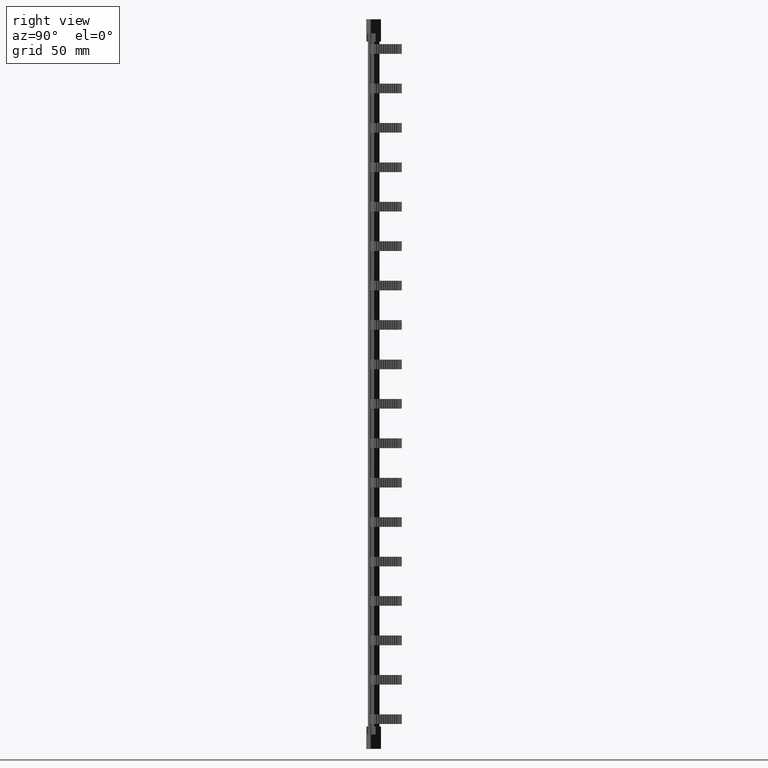
[diagram: clean part render]
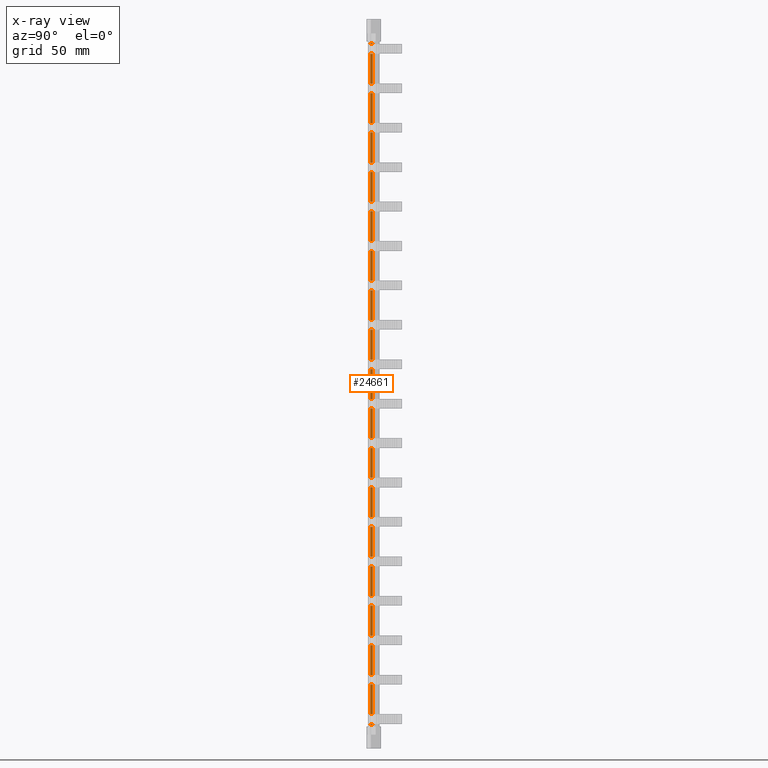
[diagram: x-ray — body ghosted, one internal face saturated and labeled with its STEP entity id]
A machine part, right view, then the same camera in x-ray: the body is ghosted and one INTERNAL B-rep face — a face not visible from any outside direction — is saturated and labeled: STEP entity #24661.
In plain terms, the highlighted planar face has unit normal (1, -0, 0).
Its self-contained STEP definition (entity closure, byte-faithful):
#46 = VECTOR ( 'NONE', #1295, 1000.000000000000000 ) ;
#584 = DIRECTION ( 'NONE',  ( -4.290194349704565900E-047, -1.000000000000000000, 2.593268936129210100E-023 ) ) ;
#590 = LINE ( 'NONE', #591, #5545 ) ;
#591 = CARTESIAN_POINT ( 'NONE',  ( 10.37430495582721900, -198.1399000273587800, 151.6000000000000200 ) ) ;
#599 = LINE ( 'NONE', #602, #5562 ) ;
#602 = CARTESIAN_POINT ( 'NONE',  ( 10.37430495582721900, -198.1399000273587800, 186.8000000000000100 ) ) ;
#608 = DIRECTION ( 'NONE',  ( -4.290194349704565900E-047, -1.000000000000000000, 2.593268936129210100E-023 ) ) ;
#621 = LINE ( 'NONE', #636, #5575 ) ;
#636 = CARTESIAN_POINT ( 'NONE',  ( 10.37430495582721900, -198.1399000273587800, 85.50000000000001400 ) ) ;
#641 = DIRECTION ( 'NONE',  ( -4.290194349704565900E-047, -1.000000000000000000, 2.593268936129210100E-023 ) ) ;
#660 = LINE ( 'NONE', #662, #5535 ) ;
#662 = CARTESIAN_POINT ( 'NONE',  ( 10.37430495582721900, -198.1399000273587800, 173.5000000000000300 ) ) ;
#681 = DIRECTION ( 'NONE',  ( -4.290194349704565900E-047, -1.000000000000000000, 2.593268936129210100E-023 ) ) ;
#722 = LINE ( 'NONE', #790, #5607 ) ;
#747 = LINE ( 'NONE', #781, #5631 ) ;
#775 = DIRECTION ( 'NONE',  ( -4.290194349704565900E-047, -1.000000000000000000, 2.593268936129210100E-023 ) ) ;
#777 = DIRECTION ( 'NONE',  ( -4.290194349704565900E-047, -1.000000000000000000, 2.593268936129210100E-023 ) ) ;
#781 = CARTESIAN_POINT ( 'NONE',  ( 10.37430495582721900, -198.1399000273587800, 191.1000000000000200 ) ) ;
#787 = LINE ( 'NONE', #818, #5645 ) ;
#790 = CARTESIAN_POINT ( 'NONE',  ( 10.37430495582721900, -198.1399000273587800, 134.0000000000000000 ) ) ;
#793 = LINE ( 'NONE', #799, #5644 ) ;
#799 = CARTESIAN_POINT ( 'NONE',  ( 10.37430495582721900, -198.1399000273587800, 169.2000000000000500 ) ) ;
#803 = CARTESIAN_POINT ( 'NONE',  ( 10.37430495582721900, -198.1399000273587800, 208.7000000000000500 ) ) ;
#804 = DIRECTION ( 'NONE',  ( -4.290194349704565900E-047, -1.000000000000000000, 2.593268936129210100E-023 ) ) ;
#810 = DIRECTION ( 'NONE',  ( -4.290194349704565900E-047, -1.000000000000000000, 2.593268936129210100E-023 ) ) ;
#813 = DIRECTION ( 'NONE',  ( -4.290194349704565900E-047, -1.000000000000000000, 2.593268936129210100E-023 ) ) ;
#818 = CARTESIAN_POINT ( 'NONE',  ( 10.37430495582721900, -198.1399000273587800, 81.20000000000004500 ) ) ;
#819 = LINE ( 'NONE', #803, #5643 ) ;
#863 = LINE ( 'NONE', #865, #5617 ) ;
#865 = CARTESIAN_POINT ( 'NONE',  ( 10.37430495582721900, -198.1399000273587800, 155.9000000000000600 ) ) ;
#873 = CARTESIAN_POINT ( 'NONE',  ( 10.37430495582721900, -198.1399000273587800, 46.00000000000001400 ) ) ;
#875 = CARTESIAN_POINT ( 'NONE',  ( 10.37430495582721900, -198.1399000273587800, 138.3000000000000400 ) ) ;
#884 = DIRECTION ( 'NONE',  ( -4.290194349704565900E-047, -1.000000000000000000, 2.593268936129210100E-023 ) ) ;
#886 = DIRECTION ( 'NONE',  ( -4.290194349704565900E-047, -1.000000000000000000, 2.593268936129210100E-023 ) ) ;
#889 = LINE ( 'NONE', #892, #5664 ) ;
#892 = CARTESIAN_POINT ( 'NONE',  ( 10.37430495582721900, -198.1399000273587800, -20.09999999999998000 ) ) ;
#893 = DIRECTION ( 'NONE',  ( -4.290194349704565900E-047, -1.000000000000000000, 2.593268936129210100E-023 ) ) ;
#894 = LINE ( 'NONE', #936, #5665 ) ;
#899 = DIRECTION ( 'NONE',  ( -4.290194349704565900E-047, -1.000000000000000000, 2.593268936129210100E-023 ) ) ;
#903 = LINE ( 'NONE', #873, #5600 ) ;
#904 = LINE ( 'NONE', #875, #5615 ) ;
#907 = CARTESIAN_POINT ( 'NONE',  ( 10.37430495582721900, -198.1399000273587800, 15.10000000000000100 ) ) ;
#912 = LINE ( 'NONE', #907, #5703 ) ;
#928 = DIRECTION ( 'NONE',  ( -4.290194349704565900E-047, -1.000000000000000000, 2.593268936129210100E-023 ) ) ;
#936 = CARTESIAN_POINT ( 'NONE',  ( 10.37430495582721900, -198.1399000273587800, 67.90000000000002000 ) ) ;
#946 = DIRECTION ( 'NONE',  ( -4.290194349704565900E-047, -1.000000000000000000, 2.593268936129210100E-023 ) ) ;
#956 = CARTESIAN_POINT ( 'NONE',  ( 10.37430495582721900, -198.1399000273587800, 120.7000000000000200 ) ) ;
#957 = LINE ( 'NONE', #973, #5720 ) ;
#958 = LINE ( 'NONE', #956, #5670 ) ;
#960 = LINE ( 'NONE', #989, #5668 ) ;
#961 = LINE ( 'NONE', #970, #5676 ) ;
#962 = DIRECTION ( 'NONE',  ( -4.290194349704565900E-047, -1.000000000000000000, 2.593268936129210100E-023 ) ) ;
#970 = CARTESIAN_POINT ( 'NONE',  ( 10.37430495582721900, -198.1399000273587800, 63.60000000000001600 ) ) ;
#973 = CARTESIAN_POINT ( 'NONE',  ( 10.37430495582721900, -198.1399000273587800, 98.80000000000002600 ) ) ;
#982 = DIRECTION ( 'NONE',  ( -4.290194349704565900E-047, -1.000000000000000000, 2.593268936129210100E-023 ) ) ;
#989 = CARTESIAN_POINT ( 'NONE',  ( 10.37430495582721900, -198.1399000273587800, 116.4000000000000200 ) ) ;
#992 = DIRECTION ( 'NONE',  ( -4.290194349704565900E-047, -1.000000000000000000, 2.593268936129210100E-023 ) ) ;
#1005 = DIRECTION ( 'NONE',  ( -4.290194349704565900E-047, -1.000000000000000000, 2.593268936129210100E-023 ) ) ;
#1009 = CARTESIAN_POINT ( 'NONE',  ( 10.37430495582721900, -198.1399000273587800, 50.30000000000001100 ) ) ;
#1012 = CARTESIAN_POINT ( 'NONE',  ( 10.37430495582721900, -198.1399000273587800, 103.1000000000000200 ) ) ;
#1013 = DIRECTION ( 'NONE',  ( -4.290194349704565900E-047, -1.000000000000000000, 2.593268936129210100E-023 ) ) ;
#1015 = DIRECTION ( 'NONE',  ( -4.290194349704565900E-047, -1.000000000000000000, 2.593268936129210100E-023 ) ) ;
#1018 = LINE ( 'NONE', #1012, #5716 ) ;
#1028 = LINE ( 'NONE', #1009, #5718 ) ;
#1079 = DIRECTION ( 'NONE',  ( -4.290194349704565900E-047, -1.000000000000000000, 2.593268936129210100E-023 ) ) ;
#1080 = CARTESIAN_POINT ( 'NONE',  ( 10.37430495582721900, -198.1399000273587800, -37.69999999999998200 ) ) ;
#1081 = LINE ( 'NONE', #1080, #4707 ) ;
#1089 = CARTESIAN_POINT ( 'NONE',  ( 10.37430495582721900, -198.1399000273587800, -59.59999999999998700 ) ) ;
#1090 = DIRECTION ( 'NONE',  ( -4.290194349704565900E-047, -1.000000000000000000, 2.593268936129210100E-023 ) ) ;
#1122 = LINE ( 'NONE', #1089, #5121 ) ;
#1124 = CARTESIAN_POINT ( 'NONE',  ( 10.37430495582721900, -198.1399000273587800, 10.80000000000000400 ) ) ;
#1126 = CARTESIAN_POINT ( 'NONE',  ( 10.37430495582721900, -198.1399000273587800, -6.799999999999972300 ) ) ;
#1128 = CARTESIAN_POINT ( 'NONE',  ( 10.37430495582721900, -198.1399000273587800, 32.70000000000001000 ) ) ;
#1129 = LINE ( 'NONE', #1161, #29418 ) ;
#1130 = LINE ( 'NONE', #1126, #29461 ) ;
#1134 = DIRECTION ( 'NONE',  ( -4.290194349704565900E-047, -1.000000000000000000, 2.593268936129210100E-023 ) ) ;
#1137 = DIRECTION ( 'NONE',  ( -4.290194349704565900E-047, -1.000000000000000000, 2.593268936129210100E-023 ) ) ;
#1139 = DIRECTION ( 'NONE',  ( -4.290194349704565900E-047, -1.000000000000000000, 2.593268936129210100E-023 ) ) ;
#1155 = DIRECTION ( 'NONE',  ( -4.290194349704565900E-047, -1.000000000000000000, 2.593268936129210100E-023 ) ) ;
#1161 = CARTESIAN_POINT ( 'NONE',  ( 10.37430495582721900, -198.1399000273587800, 28.40000000000000900 ) ) ;
#1165 = LINE ( 'NONE', #1128, #29454 ) ;
#1167 = LINE ( 'NONE', #1124, #29451 ) ;
#1177 = LINE ( 'NONE', #1256, #29458 ) ;
#1235 = LINE ( 'NONE', #1250, #29440 ) ;
#1239 = DIRECTION ( 'NONE',  ( -4.290194349704565900E-047, -1.000000000000000000, 2.593268936129210100E-023 ) ) ;
#1250 = CARTESIAN_POINT ( 'NONE',  ( 10.37430495582721900, -198.1399000273587800, -41.99999999999997900 ) ) ;
#1256 = CARTESIAN_POINT ( 'NONE',  ( 10.37430495582721900, -198.1399000273587800, -2.499999999999974200 ) ) ;
#1265 = LINE ( 'NONE', #1288, #46 ) ;
#1281 = DIRECTION ( 'NONE',  ( -4.290194349704565900E-047, -1.000000000000000000, 2.593268936129210100E-023 ) ) ;
#1288 = CARTESIAN_POINT ( 'NONE',  ( 10.37430495582721900, -198.1399000273587800, -24.39999999999997700 ) ) ;
#1295 = DIRECTION ( 'NONE',  ( -4.290194349704565900E-047, -1.000000000000000000, 2.593268936129210100E-023 ) ) ;
#1415 = CARTESIAN_POINT ( 'NONE',  ( 10.37430495582721900, -198.1399000273587800, 204.4000000000000300 ) ) ;
#1436 = DIRECTION ( 'NONE',  ( -4.290194349704565900E-047, -1.000000000000000000, 2.593268936129210100E-023 ) ) ;
#1446 = LINE ( 'NONE', #1415, #5467 ) ;
#4071 = CARTESIAN_POINT ( 'NONE',  ( 10.37430495582775700, 1.100000111734499500, 191.1000000000000200 ) ) ;
#4072 = CARTESIAN_POINT ( 'NONE',  ( 10.37430495582721900, 2.091755613266022000, 50.30000000000001100 ) ) ;
#4082 = CARTESIAN_POINT ( 'NONE',  ( 10.37430495582721900, 2.091755613266022000, 191.1000000000000200 ) ) ;
#4086 = CARTESIAN_POINT ( 'NONE',  ( 10.37430495582775700, 1.100000111734499500, 28.40000000000000900 ) ) ;
#4088 = CARTESIAN_POINT ( 'NONE',  ( 10.37430495582721900, 2.091755613266022000, 208.7000000000000500 ) ) ;
#4089 = CARTESIAN_POINT ( 'NONE',  ( 10.37430495582721900, 2.091755613266022000, 186.8000000000000100 ) ) ;
#4096 = CARTESIAN_POINT ( 'NONE',  ( 10.37430495582775700, 1.100000111734499500, 103.1000000000000200 ) ) ;
#4097 = CARTESIAN_POINT ( 'NONE',  ( 10.37430495582775700, 1.100000111734499500, 204.4000000000000300 ) ) ;
#4100 = CARTESIAN_POINT ( 'NONE',  ( 10.37430495582775700, 1.100000111734499500, 85.50000000000001400 ) ) ;
#4103 = CARTESIAN_POINT ( 'NONE',  ( 10.37430495582775700, 1.100000111734499500, 186.8000000000000100 ) ) ;
#4109 = CARTESIAN_POINT ( 'NONE',  ( 10.37430495582754000, 1.100000111734499500, 208.7000000000000500 ) ) ;
#4115 = CARTESIAN_POINT ( 'NONE',  ( 10.37430495582775700, 1.100000111734499500, 169.2000000000000500 ) ) ;
#4117 = CARTESIAN_POINT ( 'NONE',  ( 10.37430495582721900, 2.091755613266022000, 169.2000000000000500 ) ) ;
#4125 = CARTESIAN_POINT ( 'NONE',  ( 10.37430495582721900, 2.091755613266022000, 204.4000000000000300 ) ) ;
#4131 = CARTESIAN_POINT ( 'NONE',  ( 10.37430495582721900, 2.091755613266022000, 151.6000000000000200 ) ) ;
#4133 = CARTESIAN_POINT ( 'NONE',  ( 10.37430495582775700, 1.100000111734499500, 173.5000000000000300 ) ) ;
#4135 = CARTESIAN_POINT ( 'NONE',  ( 10.37430495582721900, 2.091755613266022000, 28.40000000000000900 ) ) ;
#4138 = CARTESIAN_POINT ( 'NONE',  ( 10.37430495582775700, 1.100000111734499500, 81.20000000000001700 ) ) ;
#4140 = CARTESIAN_POINT ( 'NONE',  ( 10.37430495582775700, 1.100000111734499500, 151.6000000000000200 ) ) ;
#4144 = CARTESIAN_POINT ( 'NONE',  ( 10.37430495582775700, 1.100000111734499500, 138.3000000000000400 ) ) ;
#4145 = CARTESIAN_POINT ( 'NONE',  ( 10.37430495582721900, 2.091755613266022000, 81.20000000000004500 ) ) ;
#4146 = CARTESIAN_POINT ( 'NONE',  ( 10.37430495582721900, 2.091755613266022000, -55.30000000000001800 ) ) ;
#4148 = CARTESIAN_POINT ( 'NONE',  ( 10.37430495582775700, 1.100000111734499500, 98.80000000000002600 ) ) ;
#4150 = CARTESIAN_POINT ( 'NONE',  ( 10.37430495582775700, 1.100000111734499500, 63.60000000000001600 ) ) ;
#4152 = CARTESIAN_POINT ( 'NONE',  ( 10.37430495582721900, 2.091755613266022000, -59.59999999999998700 ) ) ;
#4158 = CARTESIAN_POINT ( 'NONE',  ( 10.37430495582721900, 2.091755613266022000, 67.90000000000002000 ) ) ;
#4159 = CARTESIAN_POINT ( 'NONE',  ( 10.37430495582721900, 2.091755613266022000, 120.7000000000000200 ) ) ;
#4160 = CARTESIAN_POINT ( 'NONE',  ( 10.37430495582721900, 2.091755613266022000, 85.50000000000001400 ) ) ;
#4161 = CARTESIAN_POINT ( 'NONE',  ( 10.37430495582721900, 2.091755613266022000, 155.9000000000000600 ) ) ;
#4163 = CARTESIAN_POINT ( 'NONE',  ( 10.37430495582721900, 2.091755613266022000, 138.3000000000000400 ) ) ;
#4164 = CARTESIAN_POINT ( 'NONE',  ( 10.37430495582775700, 1.100000111734499500, 46.00000000000001400 ) ) ;
#4167 = CARTESIAN_POINT ( 'NONE',  ( 10.37430495582775700, 1.100000111734499500, 134.0000000000000000 ) ) ;
#4168 = CARTESIAN_POINT ( 'NONE',  ( 10.37430495582775700, 1.100000111734499500, 155.9000000000000600 ) ) ;
#4171 = CARTESIAN_POINT ( 'NONE',  ( 10.37430495582721900, 2.091755613266022000, 134.0000000000000000 ) ) ;
#4176 = CARTESIAN_POINT ( 'NONE',  ( 10.37430495582721900, 2.091755613266022000, 63.60000000000001600 ) ) ;
#4177 = CARTESIAN_POINT ( 'NONE',  ( 10.37430495582721900, 2.091755613266022000, 103.1000000000000200 ) ) ;
#4178 = CARTESIAN_POINT ( 'NONE',  ( 10.37430495582721900, 2.091755613266022000, -90.49999999999997200 ) ) ;
#4180 = CARTESIAN_POINT ( 'NONE',  ( 10.37430495582775700, 1.100000111734499500, 67.90000000000004800 ) ) ;
#4183 = CARTESIAN_POINT ( 'NONE',  ( 10.37430495582721900, 2.091755613266022000, 46.00000000000001400 ) ) ;
#4184 = CARTESIAN_POINT ( 'NONE',  ( 10.37430495582775700, 1.100000111734499500, -94.79999999999996900 ) ) ;
#4186 = CARTESIAN_POINT ( 'NONE',  ( 10.37430495582721900, 2.091755613266022000, 116.4000000000000200 ) ) ;
#4196 = CARTESIAN_POINT ( 'NONE',  ( 10.37430495582721900, 2.091755613266022000, 10.80000000000000400 ) ) ;
#4199 = CARTESIAN_POINT ( 'NONE',  ( 10.37430495582775700, 1.100000111734499500, -72.89999999999999100 ) ) ;
#4201 = CARTESIAN_POINT ( 'NONE',  ( 10.37430495582721900, 2.091755613266022000, 173.5000000000000300 ) ) ;
#4207 = CARTESIAN_POINT ( 'NONE',  ( 10.37430495582721900, 2.091755613266022000, -6.799999999999972300 ) ) ;
#4211 = CARTESIAN_POINT ( 'NONE',  ( 10.37430495582775700, 1.100000111734499500, 10.80000000000000400 ) ) ;
#4213 = CARTESIAN_POINT ( 'NONE',  ( 10.37430495582775700, 1.100000111734499500, 15.10000000000000100 ) ) ;
#4215 = CARTESIAN_POINT ( 'NONE',  ( 10.37430495582775700, 1.100000111734499500, -20.09999999999998000 ) ) ;
#4216 = CARTESIAN_POINT ( 'NONE',  ( 10.37430495582721900, 2.091755613266022000, -24.39999999999997700 ) ) ;
#4218 = CARTESIAN_POINT ( 'NONE',  ( 10.37430495582775700, 1.100000111734499500, -90.50000000000000000 ) ) ;
#4221 = CARTESIAN_POINT ( 'NONE',  ( 10.37430495582775700, 1.100000111734499500, -59.59999999999995900 ) ) ;
#4224 = CARTESIAN_POINT ( 'NONE',  ( 10.37430495582721900, 2.091755613266022000, 98.80000000000002600 ) ) ;
#4226 = CARTESIAN_POINT ( 'NONE',  ( 10.37430495582775700, 1.100000111734499500, -55.29999999999999000 ) ) ;
#4227 = CARTESIAN_POINT ( 'NONE',  ( 10.37430495582721900, 2.091755613266022000, -72.90000000000002000 ) ) ;
#4230 = CARTESIAN_POINT ( 'NONE',  ( 10.37430495582775700, 1.100000111734499500, 116.4000000000000200 ) ) ;
#4233 = CARTESIAN_POINT ( 'NONE',  ( 10.37430495582775700, 1.100000111734499500, 50.30000000000001100 ) ) ;
#4234 = CARTESIAN_POINT ( 'NONE',  ( 10.37430495582775700, 1.100000111734499500, -41.99999999999995700 ) ) ;
#4238 = CARTESIAN_POINT ( 'NONE',  ( 10.37430495582721900, 2.091755613266022000, -20.09999999999998000 ) ) ;
#4242 = CARTESIAN_POINT ( 'NONE',  ( 10.37430495582721900, 2.091755613266022000, -37.69999999999998200 ) ) ;
#4249 = CARTESIAN_POINT ( 'NONE',  ( 10.37430495582775700, 1.100000111734499500, 120.7000000000000200 ) ) ;
#4252 = CARTESIAN_POINT ( 'NONE',  ( 10.37430495582775700, 1.100000111734499500, -77.20000000000001700 ) ) ;
#4253 = CARTESIAN_POINT ( 'NONE',  ( 10.37430495582721900, 2.091755613266022000, -2.499999999999974200 ) ) ;
#4255 = CARTESIAN_POINT ( 'NONE',  ( 10.37430495582721900, 2.091755613266022000, 15.10000000000000100 ) ) ;
#4256 = CARTESIAN_POINT ( 'NONE',  ( 10.37430495582721900, 2.091755613266022000, -77.19999999999998900 ) ) ;
#4259 = CARTESIAN_POINT ( 'NONE',  ( 10.37430495582775700, 1.100000111734499500, -37.69999999999998200 ) ) ;
#4261 = CARTESIAN_POINT ( 'NONE',  ( 10.37430495582721900, 2.091755613266022000, 32.70000000000001000 ) ) ;
#4267 = CARTESIAN_POINT ( 'NONE',  ( 10.37430495582721900, 2.091755613266022000, -41.99999999999997900 ) ) ;
#4279 = CARTESIAN_POINT ( 'NONE',  ( 10.37430495582775700, 1.100000111734499500, -2.499999999999974200 ) ) ;
#4304 = CARTESIAN_POINT ( 'NONE',  ( 10.37430495582775700, 1.100000111734499500, -24.39999999999997700 ) ) ;
#4307 = CARTESIAN_POINT ( 'NONE',  ( 10.37430495582775700, 1.100000111734499500, 32.70000000000001000 ) ) ;
#4312 = CARTESIAN_POINT ( 'NONE',  ( 10.37430495582721900, 2.091755613266022000, -94.79999999999999700 ) ) ;
#4317 = CARTESIAN_POINT ( 'NONE',  ( 10.37430495582775700, 1.100000111734499500, -6.799999999999972300 ) ) ;
#4396 = CARTESIAN_POINT ( 'NONE',  ( 10.37430495582721900, 2.100000585347646400, 209.0000000000000000 ) ) ;
#4405 = CARTESIAN_POINT ( 'NONE',  ( 10.37430495582757800, 1.099999228333157000, -94.99999999999995700 ) ) ;
#4413 = CARTESIAN_POINT ( 'NONE',  ( 10.37430495582721900, 2.100000585347646400, -94.99999999999998600 ) ) ;
#4444 = CARTESIAN_POINT ( 'NONE',  ( 10.37430495582721900, 1.099999594483536100, 209.0000000000000300 ) ) ;
#4707 = VECTOR ( 'NONE', #1079, 1000.000000000000000 ) ;
#5121 = VECTOR ( 'NONE', #1090, 1000.000000000000000 ) ;
#5467 = VECTOR ( 'NONE', #1436, 1000.000000000000000 ) ;
#5535 = VECTOR ( 'NONE', #641, 1000.000000000000000 ) ;
#5545 = VECTOR ( 'NONE', #584, 1000.000000000000000 ) ;
#5562 = VECTOR ( 'NONE', #608, 1000.000000000000000 ) ;
#5575 = VECTOR ( 'NONE', #681, 1000.000000000000000 ) ;
#5600 = VECTOR ( 'NONE', #899, 1000.000000000000000 ) ;
#5607 = VECTOR ( 'NONE', #775, 1000.000000000000000 ) ;
#5615 = VECTOR ( 'NONE', #884, 1000.000000000000000 ) ;
#5617 = VECTOR ( 'NONE', #886, 1000.000000000000000 ) ;
#5631 = VECTOR ( 'NONE', #810, 1000.000000000000000 ) ;
#5643 = VECTOR ( 'NONE', #813, 1000.000000000000000 ) ;
#5644 = VECTOR ( 'NONE', #804, 1000.000000000000000 ) ;
#5645 = VECTOR ( 'NONE', #777, 1000.000000000000000 ) ;
#5664 = VECTOR ( 'NONE', #893, 1000.000000000000000 ) ;
#5665 = VECTOR ( 'NONE', #946, 1000.000000000000000 ) ;
#5668 = VECTOR ( 'NONE', #992, 1000.000000000000000 ) ;
#5670 = VECTOR ( 'NONE', #982, 1000.000000000000000 ) ;
#5676 = VECTOR ( 'NONE', #962, 1000.000000000000000 ) ;
#5703 = VECTOR ( 'NONE', #928, 1000.000000000000000 ) ;
#5716 = VECTOR ( 'NONE', #1005, 1000.000000000000000 ) ;
#5718 = VECTOR ( 'NONE', #1015, 1000.000000000000000 ) ;
#5720 = VECTOR ( 'NONE', #1013, 1000.000000000000000 ) ;
#5838 = EDGE_CURVE ( 'NONE', #27738, #27755, #1446, .T. ) ;
#5876 = EDGE_CURVE ( 'NONE', #27751, #27788, #590, .T. ) ;
#5881 = EDGE_CURVE ( 'NONE', #27773, #27744, #599, .T. ) ;
#5888 = EDGE_CURVE ( 'NONE', #27854, #27760, #660, .T. ) ;
#5895 = EDGE_CURVE ( 'NONE', #27786, #27756, #621, .T. ) ;
#5909 = EDGE_CURVE ( 'NONE', #27772, #27767, #819, .T. ) ;
#5910 = EDGE_CURVE ( 'NONE', #27762, #27778, #793, .T. ) ;
#5914 = EDGE_CURVE ( 'NONE', #27765, #27763, #747, .T. ) ;
#5919 = EDGE_CURVE ( 'NONE', #27787, #27834, #722, .T. ) ;
#5920 = EDGE_CURVE ( 'NONE', #27784, #27833, #787, .T. ) ;
#5939 = EDGE_CURVE ( 'NONE', #27825, #27789, #903, .T. ) ;
#5942 = EDGE_CURVE ( 'NONE', #27840, #27813, #904, .T. ) ;
#5944 = EDGE_CURVE ( 'NONE', #27836, #27838, #863, .T. ) ;
#5949 = EDGE_CURVE ( 'NONE', #27906, #27867, #889, .T. ) ;
#5950 = EDGE_CURVE ( 'NONE', #27781, #27832, #894, .T. ) ;
#5961 = EDGE_CURVE ( 'NONE', #27890, #27848, #912, .T. ) ;
#5973 = EDGE_CURVE ( 'NONE', #27828, #27857, #960, .T. ) ;
#5975 = EDGE_CURVE ( 'NONE', #27816, #27858, #958, .T. ) ;
#5977 = EDGE_CURVE ( 'NONE', #27811, #27826, #961, .T. ) ;
#5981 = EDGE_CURVE ( 'NONE', #27845, #27820, #957, .T. ) ;
#5984 = EDGE_CURVE ( 'NONE', #27837, #27750, #1018, .T. ) ;
#5988 = EDGE_CURVE ( 'NONE', #27764, #27853, #1028, .T. ) ;
#6013 = EDGE_CURVE ( 'NONE', #27850, #27870, #1081, .T. ) ;
#6015 = EDGE_CURVE ( 'NONE', #27808, #27891, #1122, .T. ) ;
#6023 = EDGE_CURVE ( 'NONE', #27895, #27928, #1130, .T. ) ;
#6030 = EDGE_CURVE ( 'NONE', #27793, #27771, #1129, .T. ) ;
#6031 = EDGE_CURVE ( 'NONE', #27868, #27927, #1165, .T. ) ;
#6033 = EDGE_CURVE ( 'NONE', #27806, #27901, #1167, .T. ) ;
#6053 = EDGE_CURVE ( 'NONE', #27885, #27921, #1177, .T. ) ;
#6069 = EDGE_CURVE ( 'NONE', #27926, #27881, #1235, .T. ) ;
#6083 = EDGE_CURVE ( 'NONE', #27869, #27924, #1265, .T. ) ;
#14690 = EDGE_LOOP ( 'NONE', ( #24505, #24494, #24551, #24449, #24452, #24442, #24460, #24538, #24507, #24506, #24521, #24508, #24468, #24556, #24502, #24539, #24472, #24482, #24458, #24486, #24450, #24488, #23214, #24525, #24535, #23227, #23208, #24536, #24546, #23239, #24564, #24537, #23212, #24549, #24554, #23209, #23201, #23250, #23237, #23211, #23218, #23255, #23217, #24534, #23198, #23220, #24512, #24516, #23224, #23197, #23241, #23254, #24563, #23253, #24527, #23235, #23207, #24509, #23252, #23210, #23240, #24557, #24518, #23251, #24544, #23249, #24547, #23238, #24533, #23228, #23229, #23213, #23219, #23248, #24550, #24553 ) ) ;
#14950 = LINE ( 'NONE', #14993, #25957 ) ;
#14968 = CARTESIAN_POINT ( 'NONE',  ( 10.37430495582721900, 2.091755613266022000, 209.0000000000000300 ) ) ;
#14978 = DIRECTION ( 'NONE',  ( -4.290194349704565900E-047, -1.000000000000000000, 2.593268936129210100E-023 ) ) ;
#14979 = LINE ( 'NONE', #14968, #26022 ) ;
#14980 = DIRECTION ( 'NONE',  ( 1.654357377733165500E-024, 0.0000000000000000000, -1.000000000000000000 ) ) ;
#14993 = CARTESIAN_POINT ( 'NONE',  ( 10.37430495582721900, -198.1399000273587800, -94.79999999999999700 ) ) ;
#15001 = DIRECTION ( 'NONE',  ( -4.290194349704565900E-047, -1.000000000000000000, 2.593268936129210100E-023 ) ) ;
#15007 = LINE ( 'NONE', #15019, #26027 ) ;
#15019 = CARTESIAN_POINT ( 'NONE',  ( 10.37430495582721900, -198.1399000273587800, -77.19999999999998900 ) ) ;
#15023 = DIRECTION ( 'NONE',  ( -4.290194349704565900E-047, -1.000000000000000000, 2.593268936129210100E-023 ) ) ;
#15041 = LINE ( 'NONE', #15043, #26019 ) ;
#15043 = CARTESIAN_POINT ( 'NONE',  ( 10.37430495582721900, -198.1399000273587800, -72.90000000000002000 ) ) ;
#15079 = CARTESIAN_POINT ( 'NONE',  ( 10.37430495582775700, 1.100000111734499500, 219.0000000000000000 ) ) ;
#15101 = DIRECTION ( 'NONE',  ( 1.654357377733165500E-024, 0.0000000000000000000, -1.000000000000000000 ) ) ;
#15102 = LINE ( 'NONE', #15140, #25996 ) ;
#15109 = CARTESIAN_POINT ( 'NONE',  ( 10.37430495582721900, 2.091755613266022000, 209.0000000000000300 ) ) ;
#15113 = DIRECTION ( 'NONE',  ( 1.654357377733165500E-024, 0.0000000000000000000, -1.000000000000000000 ) ) ;
#15114 = LINE ( 'NONE', #15139, #26024 ) ;
#15116 = LINE ( 'NONE', #15109, #26002 ) ;
#15122 = LINE ( 'NONE', #15142, #25976 ) ;
#15123 = LINE ( 'NONE', #15125, #26023 ) ;
#15125 = CARTESIAN_POINT ( 'NONE',  ( 10.37430495582721900, -198.1399000273587800, -90.49999999999997200 ) ) ;
#15127 = DIRECTION ( 'NONE',  ( 1.654357377733165500E-024, 0.0000000000000000000, -1.000000000000000000 ) ) ;
#15128 = DIRECTION ( 'NONE',  ( -4.290194349704565900E-047, -1.000000000000000000, 2.593268936129210100E-023 ) ) ;
#15129 = CARTESIAN_POINT ( 'NONE',  ( 10.37430495582721900, 2.091755613266022000, 209.0000000000000300 ) ) ;
#15135 = LINE ( 'NONE', #15129, #25983 ) ;
#15139 = CARTESIAN_POINT ( 'NONE',  ( 10.37430495582721900, 2.091755613266022000, 209.0000000000000300 ) ) ;
#15140 = CARTESIAN_POINT ( 'NONE',  ( 10.37430495582721900, 2.091755613266022000, 209.0000000000000300 ) ) ;
#15142 = CARTESIAN_POINT ( 'NONE',  ( 10.37430495582721900, 2.091755613266022000, 209.0000000000000300 ) ) ;
#15144 = DIRECTION ( 'NONE',  ( 1.654357377733165500E-024, 0.0000000000000000000, -1.000000000000000000 ) ) ;
#15149 = DIRECTION ( 'NONE',  ( 1.654357377733165500E-024, 0.0000000000000000000, -1.000000000000000000 ) ) ;
#15161 = LINE ( 'NONE', #15176, #26013 ) ;
#15176 = CARTESIAN_POINT ( 'NONE',  ( 10.37430495582721900, 2.091755613266022000, 209.0000000000000300 ) ) ;
#15181 = DIRECTION ( 'NONE',  ( 1.654357377733165500E-024, 0.0000000000000000000, -1.000000000000000000 ) ) ;
#15185 = LINE ( 'NONE', #15240, #26075 ) ;
#15198 = DIRECTION ( 'NONE',  ( 1.654357377733165500E-024, 0.0000000000000000000, -1.000000000000000000 ) ) ;
#15199 = DIRECTION ( 'NONE',  ( 1.654357377733165500E-024, 0.0000000000000000000, -1.000000000000000000 ) ) ;
#15206 = CARTESIAN_POINT ( 'NONE',  ( 10.37430495582721900, 2.091755613266022000, 209.0000000000000300 ) ) ;
#15215 = LINE ( 'NONE', #15237, #26081 ) ;
#15216 = LINE ( 'NONE', #15206, #26072 ) ;
#15225 = DIRECTION ( 'NONE',  ( 1.654357377733165500E-024, 0.0000000000000000000, -1.000000000000000000 ) ) ;
#15228 = LINE ( 'NONE', #15247, #26085 ) ;
#15229 = DIRECTION ( 'NONE',  ( 1.654357377733165500E-024, 0.0000000000000000000, -1.000000000000000000 ) ) ;
#15237 = CARTESIAN_POINT ( 'NONE',  ( 10.37430495582721900, 2.091755613266022000, 209.0000000000000300 ) ) ;
#15240 = CARTESIAN_POINT ( 'NONE',  ( 10.37430495582721900, 2.091755613266022000, 209.0000000000000300 ) ) ;
#15247 = CARTESIAN_POINT ( 'NONE',  ( 10.37430495582721900, 2.091755613266022000, 209.0000000000000300 ) ) ;
#15306 = CARTESIAN_POINT ( 'NONE',  ( 10.37430495582721900, 2.091755613266022000, 209.0000000000000300 ) ) ;
#15307 = LINE ( 'NONE', #15311, #26086 ) ;
#15311 = CARTESIAN_POINT ( 'NONE',  ( 10.37430495582721900, 2.091755613266022000, 209.0000000000000300 ) ) ;
#15324 = DIRECTION ( 'NONE',  ( -4.290194349704565900E-047, -1.000000000000000000, 2.593268936129210100E-023 ) ) ;
#15329 = CARTESIAN_POINT ( 'NONE',  ( 10.37430495582721900, -198.1399000273587800, -55.30000000000001800 ) ) ;
#15332 = LINE ( 'NONE', #15329, #26035 ) ;
#15336 = DIRECTION ( 'NONE',  ( 1.654357377733165500E-024, 0.0000000000000000000, -1.000000000000000000 ) ) ;
#15337 = DIRECTION ( 'NONE',  ( 1.654357377733165500E-024, 0.0000000000000000000, -1.000000000000000000 ) ) ;
#15340 = LINE ( 'NONE', #15306, #26070 ) ;
#15355 = DIRECTION ( 'NONE',  ( 1.654357377733165500E-024, 0.0000000000000000000, -1.000000000000000000 ) ) ;
#15356 = CARTESIAN_POINT ( 'NONE',  ( 10.37430495582721900, 2.091755613266022000, 209.0000000000000300 ) ) ;
#15368 = CARTESIAN_POINT ( 'NONE',  ( 10.37430495582721900, 2.091755613266022000, 209.0000000000000300 ) ) ;
#15373 = LINE ( 'NONE', #15393, #26062 ) ;
#15376 = LINE ( 'NONE', #15356, #26089 ) ;
#15381 = DIRECTION ( 'NONE',  ( 1.654357377733165500E-024, 0.0000000000000000000, -1.000000000000000000 ) ) ;
#15391 = DIRECTION ( 'NONE',  ( 1.654357377733165500E-024, 0.0000000000000000000, -1.000000000000000000 ) ) ;
#15393 = CARTESIAN_POINT ( 'NONE',  ( 10.37430495582721900, 2.091755613266022000, 209.0000000000000300 ) ) ;
#15395 = LINE ( 'NONE', #15368, #26057 ) ;
#15414 = LINE ( 'NONE', #15417, #26122 ) ;
#15417 = CARTESIAN_POINT ( 'NONE',  ( 10.37430495582721900, 2.091755613266022000, 209.0000000000000300 ) ) ;
#15440 = DIRECTION ( 'NONE',  ( 1.654357377733165500E-024, 0.0000000000000000000, -1.000000000000000000 ) ) ;
#15462 = CARTESIAN_POINT ( 'NONE',  ( 10.37430495582721900, 2.091755613266022000, 209.0000000000000300 ) ) ;
#15468 = LINE ( 'NONE', #15462, #26104 ) ;
#15490 = DIRECTION ( 'NONE',  ( 1.654357377733165500E-024, 0.0000000000000000000, -1.000000000000000000 ) ) ;
#15536 = DIRECTION ( 'NONE',  ( -0.0000000000000000000, -0.0000000000000000000, -1.000000000000000000 ) ) ;
#15545 = LINE ( 'NONE', #15577, #26140 ) ;
#15574 = LINE ( 'NONE', #15590, #26153 ) ;
#15577 = CARTESIAN_POINT ( 'NONE',  ( 10.37430495582775700, 1.100000111734499500, 219.0000000000000000 ) ) ;
#15590 = CARTESIAN_POINT ( 'NONE',  ( 10.37430495582721900, -198.1399000273587500, 209.0000000000000300 ) ) ;
#15591 = DIRECTION ( 'NONE',  ( -0.0000000000000000000, -0.0000000000000000000, -1.000000000000000000 ) ) ;
#15598 = CARTESIAN_POINT ( 'NONE',  ( 10.37430495582775700, 1.100000111734499500, 219.0000000000000000 ) ) ;
#15599 = DIRECTION ( 'NONE',  ( -0.0000000000000000000, -0.0000000000000000000, -1.000000000000000000 ) ) ;
#15602 = CARTESIAN_POINT ( 'NONE',  ( 10.37430495582775700, 1.100000111734499500, 219.0000000000000000 ) ) ;
#15604 = LINE ( 'NONE', #15638, #26114 ) ;
#15605 = DIRECTION ( 'NONE',  ( -0.0000000000000000000, -0.0000000000000000000, -1.000000000000000000 ) ) ;
#15609 = DIRECTION ( 'NONE',  ( -0.0000000000000000000, 1.000000000000000000, -2.593268936129210100E-023 ) ) ;
#15610 = LINE ( 'NONE', #15612, #26129 ) ;
#15612 = CARTESIAN_POINT ( 'NONE',  ( 10.37430495582775700, 1.100000111734499500, 219.0000000000000000 ) ) ;
#15620 = DIRECTION ( 'NONE',  ( -0.0000000000000000000, -0.0000000000000000000, -1.000000000000000000 ) ) ;
#15624 = CARTESIAN_POINT ( 'NONE',  ( 10.37430495582775700, 1.100000111734499500, 219.0000000000000000 ) ) ;
#15627 = LINE ( 'NONE', #15598, #26130 ) ;
#15629 = DIRECTION ( 'NONE',  ( -0.0000000000000000000, -0.0000000000000000000, -1.000000000000000000 ) ) ;
#15638 = CARTESIAN_POINT ( 'NONE',  ( 10.37430495582775700, 1.100000111734499500, 219.0000000000000000 ) ) ;
#15641 = LINE ( 'NONE', #15624, #26103 ) ;
#15644 = LINE ( 'NONE', #15602, #26131 ) ;
#15645 = DIRECTION ( 'NONE',  ( -0.0000000000000000000, -0.0000000000000000000, -1.000000000000000000 ) ) ;
#15654 = CARTESIAN_POINT ( 'NONE',  ( 10.37430495582775700, 1.100000111734499500, 219.0000000000000000 ) ) ;
#15667 = DIRECTION ( 'NONE',  ( -0.0000000000000000000, -0.0000000000000000000, -1.000000000000000000 ) ) ;
#15678 = LINE ( 'NONE', #15654, #26166 ) ;
#15684 = LINE ( 'NONE', #15749, #26210 ) ;
#15702 = LINE ( 'NONE', #15079, #26174 ) ;
#15718 = DIRECTION ( 'NONE',  ( -0.0000000000000000000, -0.0000000000000000000, -1.000000000000000000 ) ) ;
#15728 = DIRECTION ( 'NONE',  ( -0.0000000000000000000, -0.0000000000000000000, -1.000000000000000000 ) ) ;
#15735 = LINE ( 'NONE', #15736, #26196 ) ;
#15736 = CARTESIAN_POINT ( 'NONE',  ( 10.37430495582775700, 1.100000111734499500, 219.0000000000000000 ) ) ;
#15749 = CARTESIAN_POINT ( 'NONE',  ( 10.37430495582775700, 1.100000111734499500, 219.0000000000000000 ) ) ;
#20904 = CARTESIAN_POINT ( 'NONE',  ( 10.37430495582721900, -198.1399000273587800, 209.0000000000000300 ) ) ;
#20905 = DIRECTION ( 'NONE',  ( 1.000000000000000000, -7.527729695361790300E-054, 1.654357377733165500E-024 ) ) ;
#20929 = DIRECTION ( 'NONE',  ( 1.654357377733165500E-024, 0.0000000000000000000, -1.000000000000000000 ) ) ;
#20930 = FACE_OUTER_BOUND ( 'NONE', #14690, .T. ) ;
#20957 = PLANE ( 'NONE',  #29041 ) ;
#22141 = DIRECTION ( 'NONE',  ( -0.0000000000000000000, -0.0000000000000000000, -1.000000000000000000 ) ) ;
#22144 = LINE ( 'NONE', #22230, #26207 ) ;
#22145 = CARTESIAN_POINT ( 'NONE',  ( 10.37430495582721900, 2.100000585347644200, 207.9000000000000100 ) ) ;
#22148 = LINE ( 'NONE', #22157, #26190 ) ;
#22150 = CARTESIAN_POINT ( 'NONE',  ( 10.37430495582775700, 1.100000111734499500, 219.0000000000000000 ) ) ;
#22156 = DIRECTION ( 'NONE',  ( -0.0000000000000000000, 2.593268936129210100E-023, 1.000000000000000000 ) ) ;
#22157 = CARTESIAN_POINT ( 'NONE',  ( 10.37430495582775700, 1.100000111734499500, 219.0000000000000000 ) ) ;
#22166 = LINE ( 'NONE', #22192, #26205 ) ;
#22167 = DIRECTION ( 'NONE',  ( 7.527729695361790300E-054, 1.000000000000000000, 1.245355515910281300E-077 ) ) ;
#22169 = LINE ( 'NONE', #22182, #26195 ) ;
#22173 = DIRECTION ( 'NONE',  ( -0.0000000000000000000, -0.0000000000000000000, -1.000000000000000000 ) ) ;
#22175 = LINE ( 'NONE', #22150, #26199 ) ;
#22180 = LINE ( 'NONE', #22145, #26193 ) ;
#22182 = CARTESIAN_POINT ( 'NONE',  ( 10.37430495582721900, -198.1399000273587800, -94.99999999999997200 ) ) ;
#22192 = CARTESIAN_POINT ( 'NONE',  ( 10.37430495582775700, 1.100000111734499500, 219.0000000000000000 ) ) ;
#22194 = DIRECTION ( 'NONE',  ( -0.0000000000000000000, -0.0000000000000000000, -1.000000000000000000 ) ) ;
#22203 = LINE ( 'NONE', #22218, #26257 ) ;
#22206 = DIRECTION ( 'NONE',  ( -0.0000000000000000000, -0.0000000000000000000, -1.000000000000000000 ) ) ;
#22218 = CARTESIAN_POINT ( 'NONE',  ( 10.37430495582775700, 1.100000111734499500, 219.0000000000000000 ) ) ;
#22223 = DIRECTION ( 'NONE',  ( -0.0000000000000000000, -0.0000000000000000000, -1.000000000000000000 ) ) ;
#22230 = CARTESIAN_POINT ( 'NONE',  ( 10.37430495582775700, 1.100000111734499500, 219.0000000000000000 ) ) ;
#22301 = CARTESIAN_POINT ( 'NONE',  ( 10.37430495582754000, 1.100000111734499500, 219.0000000000000000 ) ) ;
#22309 = LINE ( 'NONE', #22301, #26229 ) ;
#22327 = DIRECTION ( 'NONE',  ( -0.0000000000000000000, -0.0000000000000000000, -1.000000000000000000 ) ) ;
#22370 = CARTESIAN_POINT ( 'NONE',  ( 10.37430495582775700, 1.100000111734499500, 219.0000000000000000 ) ) ;
#22372 = DIRECTION ( 'NONE',  ( -0.0000000000000000000, -0.0000000000000000000, -1.000000000000000000 ) ) ;
#22380 = LINE ( 'NONE', #22370, #26236 ) ;
#22381 = CARTESIAN_POINT ( 'NONE',  ( 10.37430495582775700, 1.100000111734499500, 219.0000000000000000 ) ) ;
#22416 = DIRECTION ( 'NONE',  ( -0.0000000000000000000, -0.0000000000000000000, -1.000000000000000000 ) ) ;
#22417 = LINE ( 'NONE', #22381, #26235 ) ;
#22676 = DIRECTION ( 'NONE',  ( -0.0000000000000000000, -0.0000000000000000000, -1.000000000000000000 ) ) ;
#22691 = LINE ( 'NONE', #22700, #26212 ) ;
#22700 = CARTESIAN_POINT ( 'NONE',  ( 10.37430495582775700, 1.100000111734499500, 219.0000000000000000 ) ) ;
#23197 = ORIENTED_EDGE ( 'NONE', *, *, #6033, .T. ) ;
#23198 = ORIENTED_EDGE ( 'NONE', *, *, #25259, .T. ) ;
#23201 = ORIENTED_EDGE ( 'NONE', *, *, #25277, .T. ) ;
#23207 = ORIENTED_EDGE ( 'NONE', *, *, #25227, .T. ) ;
#23208 = ORIENTED_EDGE ( 'NONE', *, *, #25384, .T. ) ;
#23209 = ORIENTED_EDGE ( 'NONE', *, *, #5950, .F. ) ;
#23210 = ORIENTED_EDGE ( 'NONE', *, *, #6013, .F. ) ;
#23211 = ORIENTED_EDGE ( 'NONE', *, *, #5988, .F. ) ;
#23212 = ORIENTED_EDGE ( 'NONE', *, *, #25210, .T. ) ;
#23213 = ORIENTED_EDGE ( 'NONE', *, *, #25214, .F. ) ;
#23214 = ORIENTED_EDGE ( 'NONE', *, *, #25356, .T. ) ;
#23217 = ORIENTED_EDGE ( 'NONE', *, *, #25369, .T. ) ;
#23218 = ORIENTED_EDGE ( 'NONE', *, *, #25207, .T. ) ;
#23219 = ORIENTED_EDGE ( 'NONE', *, *, #25306, .T. ) ;
#23220 = ORIENTED_EDGE ( 'NONE', *, *, #6030, .T. ) ;
#23224 = ORIENTED_EDGE ( 'NONE', *, *, #25211, .T. ) ;
#23227 = ORIENTED_EDGE ( 'NONE', *, *, #5973, .T. ) ;
#23228 = ORIENTED_EDGE ( 'NONE', *, *, #25186, .T. ) ;
#23229 = ORIENTED_EDGE ( 'NONE', *, *, #25399, .T. ) ;
#23235 = ORIENTED_EDGE ( 'NONE', *, *, #5949, .F. ) ;
#23237 = ORIENTED_EDGE ( 'NONE', *, *, #25376, .T. ) ;
#23238 = ORIENTED_EDGE ( 'NONE', *, *, #25180, .F. ) ;
#23239 = ORIENTED_EDGE ( 'NONE', *, *, #5981, .T. ) ;
#23240 = ORIENTED_EDGE ( 'NONE', *, *, #25231, .T. ) ;
#23241 = ORIENTED_EDGE ( 'NONE', *, *, #25335, .T. ) ;
#23248 = ORIENTED_EDGE ( 'NONE', *, *, #25170, .T. ) ;
#23249 = ORIENTED_EDGE ( 'NONE', *, *, #6015, .T. ) ;
#23250 = ORIENTED_EDGE ( 'NONE', *, *, #5977, .T. ) ;
#23251 = ORIENTED_EDGE ( 'NONE', *, *, #25250, .F. ) ;
#23252 = ORIENTED_EDGE ( 'NONE', *, *, #25455, .T. ) ;
#23253 = ORIENTED_EDGE ( 'NONE', *, *, #6023, .T. ) ;
#23254 = ORIENTED_EDGE ( 'NONE', *, *, #6053, .F. ) ;
#23255 = ORIENTED_EDGE ( 'NONE', *, *, #5939, .T. ) ;
#24442 = ORIENTED_EDGE ( 'NONE', *, *, #5838, .T. ) ;
#24449 = ORIENTED_EDGE ( 'NONE', *, *, #5909, .F. ) ;
#24450 = ORIENTED_EDGE ( 'NONE', *, *, #25233, .T. ) ;
#24452 = ORIENTED_EDGE ( 'NONE', *, *, #25175, .T. ) ;
#24458 = ORIENTED_EDGE ( 'NONE', *, *, #25379, .T. ) ;
#24460 = ORIENTED_EDGE ( 'NONE', *, *, #25342, .T. ) ;
#24468 = ORIENTED_EDGE ( 'NONE', *, *, #25206, .T. ) ;
#24472 = ORIENTED_EDGE ( 'NONE', *, *, #25238, .T. ) ;
#24482 = ORIENTED_EDGE ( 'NONE', *, *, #5876, .T. ) ;
#24486 = ORIENTED_EDGE ( 'NONE', *, *, #5942, .F. ) ;
#24488 = ORIENTED_EDGE ( 'NONE', *, *, #5919, .T. ) ;
#24494 = ORIENTED_EDGE ( 'NONE', *, *, #25340, .F. ) ;
#24502 = ORIENTED_EDGE ( 'NONE', *, *, #25347, .T. ) ;
#24505 = ORIENTED_EDGE ( 'NONE', *, *, #25381, .T. ) ;
#24506 = ORIENTED_EDGE ( 'NONE', *, *, #5881, .T. ) ;
#24507 = ORIENTED_EDGE ( 'NONE', *, *, #25262, .T. ) ;
#24508 = ORIENTED_EDGE ( 'NONE', *, *, #5888, .F. ) ;
#24509 = ORIENTED_EDGE ( 'NONE', *, *, #6083, .T. ) ;
#24512 = ORIENTED_EDGE ( 'NONE', *, *, #25349, .T. ) ;
#24516 = ORIENTED_EDGE ( 'NONE', *, *, #5961, .F. ) ;
#24518 = ORIENTED_EDGE ( 'NONE', *, *, #25451, .T. ) ;
#24521 = ORIENTED_EDGE ( 'NONE', *, *, #25345, .T. ) ;
#24525 = ORIENTED_EDGE ( 'NONE', *, *, #5975, .F. ) ;
#24527 = ORIENTED_EDGE ( 'NONE', *, *, #25361, .T. ) ;
#24533 = ORIENTED_EDGE ( 'NONE', *, *, #25269, .T. ) ;
#24534 = ORIENTED_EDGE ( 'NONE', *, *, #6031, .F. ) ;
#24535 = ORIENTED_EDGE ( 'NONE', *, *, #25209, .T. ) ;
#24536 = ORIENTED_EDGE ( 'NONE', *, *, #5984, .F. ) ;
#24537 = ORIENTED_EDGE ( 'NONE', *, *, #5895, .F. ) ;
#24538 = ORIENTED_EDGE ( 'NONE', *, *, #5914, .F. ) ;
#24539 = ORIENTED_EDGE ( 'NONE', *, *, #5944, .F. ) ;
#24544 = ORIENTED_EDGE ( 'NONE', *, *, #25236, .T. ) ;
#24546 = ORIENTED_EDGE ( 'NONE', *, *, #25293, .T. ) ;
#24547 = ORIENTED_EDGE ( 'NONE', *, *, #25402, .T. ) ;
#24549 = ORIENTED_EDGE ( 'NONE', *, *, #5920, .T. ) ;
#24550 = ORIENTED_EDGE ( 'NONE', *, *, #25410, .T. ) ;
#24551 = ORIENTED_EDGE ( 'NONE', *, *, #25432, .T. ) ;
#24553 = ORIENTED_EDGE ( 'NONE', *, *, #25388, .T. ) ;
#24554 = ORIENTED_EDGE ( 'NONE', *, *, #25390, .T. ) ;
#24556 = ORIENTED_EDGE ( 'NONE', *, *, #5910, .T. ) ;
#24557 = ORIENTED_EDGE ( 'NONE', *, *, #6069, .T. ) ;
#24563 = ORIENTED_EDGE ( 'NONE', *, *, #25267, .T. ) ;
#24564 = ORIENTED_EDGE ( 'NONE', *, *, #25350, .T. ) ;
#24661 = ADVANCED_FACE ( 'NONE', ( #20930 ), #20957, .T. ) ;
#25170 = EDGE_CURVE ( 'NONE', #27925, #27802, #14950, .T. ) ;
#25175 = EDGE_CURVE ( 'NONE', #27772, #27738, #14979, .T. ) ;
#25180 = EDGE_CURVE ( 'NONE', #27903, #27862, #15041, .T. ) ;
#25186 = EDGE_CURVE ( 'NONE', #27865, #27866, #15007, .T. ) ;
#25206 = EDGE_CURVE ( 'NONE', #27854, #27762, #15135, .T. ) ;
#25207 = EDGE_CURVE ( 'NONE', #27764, #27825, #15102, .T. ) ;
#25209 = EDGE_CURVE ( 'NONE', #27816, #27828, #15114, .T. ) ;
#25210 = EDGE_CURVE ( 'NONE', #27786, #27784, #15122, .T. ) ;
#25211 = EDGE_CURVE ( 'NONE', #27890, #27806, #15116, .T. ) ;
#25214 = EDGE_CURVE ( 'NONE', #27842, #27875, #15123, .T. ) ;
#25227 = EDGE_CURVE ( 'NONE', #27906, #27869, #15161, .T. ) ;
#25231 = EDGE_CURVE ( 'NONE', #27850, #27926, #15185, .T. ) ;
#25233 = EDGE_CURVE ( 'NONE', #27840, #27787, #15228, .T. ) ;
#25236 = EDGE_CURVE ( 'NONE', #27809, #27808, #15216, .T. ) ;
#25238 = EDGE_CURVE ( 'NONE', #27836, #27751, #15215, .T. ) ;
#25250 = EDGE_CURVE ( 'NONE', #27809, #27851, #15332, .T. ) ;
#25259 = EDGE_CURVE ( 'NONE', #27868, #27793, #15340, .T. ) ;
#25262 = EDGE_CURVE ( 'NONE', #27765, #27773, #15307, .T. ) ;
#25267 = EDGE_CURVE ( 'NONE', #27885, #27895, #15395, .T. ) ;
#25269 = EDGE_CURVE ( 'NONE', #27903, #27865, #15376, .T. ) ;
#25277 = EDGE_CURVE ( 'NONE', #27781, #27811, #15373, .T. ) ;
#25293 = EDGE_CURVE ( 'NONE', #27837, #27845, #15414, .T. ) ;
#25306 = EDGE_CURVE ( 'NONE', #27842, #27925, #15468, .T. ) ;
#25335 = EDGE_CURVE ( 'NONE', #27901, #27921, #15545, .T. ) ;
#25340 = EDGE_CURVE ( 'NONE', #28089, #28079, #15574, .T. ) ;
#25342 = EDGE_CURVE ( 'NONE', #27755, #27763, #15610, .T. ) ;
#25345 = EDGE_CURVE ( 'NONE', #27744, #27760, #15604, .T. ) ;
#25347 = EDGE_CURVE ( 'NONE', #27778, #27838, #15641, .T. ) ;
#25349 = EDGE_CURVE ( 'NONE', #27771, #27848, #15644, .T. ) ;
#25350 = EDGE_CURVE ( 'NONE', #27820, #27756, #15627, .T. ) ;
#25356 = EDGE_CURVE ( 'NONE', #27834, #27858, #15678, .T. ) ;
#25361 = EDGE_CURVE ( 'NONE', #27928, #27867, #15684, .T. ) ;
#25369 = EDGE_CURVE ( 'NONE', #27789, #27927, #15735, .T. ) ;
#25376 = EDGE_CURVE ( 'NONE', #27826, #27853, #15702, .T. ) ;
#25379 = EDGE_CURVE ( 'NONE', #27788, #27813, #22691, .T. ) ;
#25381 = EDGE_CURVE ( 'NONE', #28040, #28079, #22180, .T. ) ;
#25384 = EDGE_CURVE ( 'NONE', #27857, #27750, #22148, .T. ) ;
#25388 = EDGE_CURVE ( 'NONE', #28071, #28040, #22169, .T. ) ;
#25390 = EDGE_CURVE ( 'NONE', #27833, #27832, #22175, .T. ) ;
#25399 = EDGE_CURVE ( 'NONE', #27866, #27875, #22144, .T. ) ;
#25402 = EDGE_CURVE ( 'NONE', #27891, #27862, #22166, .T. ) ;
#25410 = EDGE_CURVE ( 'NONE', #27802, #28071, #22203, .T. ) ;
#25432 = EDGE_CURVE ( 'NONE', #28089, #27767, #22309, .T. ) ;
#25451 = EDGE_CURVE ( 'NONE', #27881, #27851, #22380, .T. ) ;
#25455 = EDGE_CURVE ( 'NONE', #27924, #27870, #22417, .T. ) ;
#25957 = VECTOR ( 'NONE', #14978, 1000.000000000000000 ) ;
#25976 = VECTOR ( 'NONE', #15101, 1000.000000000000000 ) ;
#25983 = VECTOR ( 'NONE', #15149, 1000.000000000000000 ) ;
#25996 = VECTOR ( 'NONE', #15113, 1000.000000000000000 ) ;
#26002 = VECTOR ( 'NONE', #15127, 1000.000000000000000 ) ;
#26013 = VECTOR ( 'NONE', #15181, 1000.000000000000000 ) ;
#26019 = VECTOR ( 'NONE', #15023, 1000.000000000000000 ) ;
#26022 = VECTOR ( 'NONE', #14980, 1000.000000000000000 ) ;
#26023 = VECTOR ( 'NONE', #15128, 1000.000000000000000 ) ;
#26024 = VECTOR ( 'NONE', #15144, 1000.000000000000000 ) ;
#26027 = VECTOR ( 'NONE', #15001, 1000.000000000000000 ) ;
#26035 = VECTOR ( 'NONE', #15324, 1000.000000000000000 ) ;
#26057 = VECTOR ( 'NONE', #15381, 1000.000000000000000 ) ;
#26062 = VECTOR ( 'NONE', #15355, 1000.000000000000000 ) ;
#26070 = VECTOR ( 'NONE', #15336, 1000.000000000000000 ) ;
#26072 = VECTOR ( 'NONE', #15229, 1000.000000000000000 ) ;
#26075 = VECTOR ( 'NONE', #15199, 1000.000000000000000 ) ;
#26081 = VECTOR ( 'NONE', #15198, 1000.000000000000000 ) ;
#26085 = VECTOR ( 'NONE', #15225, 1000.000000000000000 ) ;
#26086 = VECTOR ( 'NONE', #15337, 1000.000000000000000 ) ;
#26089 = VECTOR ( 'NONE', #15391, 1000.000000000000000 ) ;
#26103 = VECTOR ( 'NONE', #15645, 1000.000000000000000 ) ;
#26104 = VECTOR ( 'NONE', #15490, 1000.000000000000000 ) ;
#26114 = VECTOR ( 'NONE', #15605, 1000.000000000000000 ) ;
#26122 = VECTOR ( 'NONE', #15440, 1000.000000000000000 ) ;
#26129 = VECTOR ( 'NONE', #15620, 1000.000000000000000 ) ;
#26130 = VECTOR ( 'NONE', #15599, 1000.000000000000000 ) ;
#26131 = VECTOR ( 'NONE', #15629, 1000.000000000000000 ) ;
#26140 = VECTOR ( 'NONE', #15591, 1000.000000000000000 ) ;
#26153 = VECTOR ( 'NONE', #15609, 1000.000000000000000 ) ;
#26166 = VECTOR ( 'NONE', #15667, 1000.000000000000000 ) ;
#26174 = VECTOR ( 'NONE', #15536, 1000.000000000000000 ) ;
#26190 = VECTOR ( 'NONE', #22173, 1000.000000000000000 ) ;
#26193 = VECTOR ( 'NONE', #22156, 1000.000000000000000 ) ;
#26195 = VECTOR ( 'NONE', #22167, 1000.000000000000000 ) ;
#26196 = VECTOR ( 'NONE', #15728, 1000.000000000000000 ) ;
#26199 = VECTOR ( 'NONE', #22141, 1000.000000000000000 ) ;
#26205 = VECTOR ( 'NONE', #22223, 1000.000000000000000 ) ;
#26207 = VECTOR ( 'NONE', #22194, 1000.000000000000000 ) ;
#26210 = VECTOR ( 'NONE', #15718, 1000.000000000000000 ) ;
#26212 = VECTOR ( 'NONE', #22676, 1000.000000000000000 ) ;
#26229 = VECTOR ( 'NONE', #22327, 1000.000000000000000 ) ;
#26235 = VECTOR ( 'NONE', #22416, 1000.000000000000000 ) ;
#26236 = VECTOR ( 'NONE', #22372, 1000.000000000000000 ) ;
#26257 = VECTOR ( 'NONE', #22206, 1000.000000000000000 ) ;
#27738 = VERTEX_POINT ( 'NONE', #4125 ) ;
#27744 = VERTEX_POINT ( 'NONE', #4103 ) ;
#27750 = VERTEX_POINT ( 'NONE', #4096 ) ;
#27751 = VERTEX_POINT ( 'NONE', #4131 ) ;
#27755 = VERTEX_POINT ( 'NONE', #4097 ) ;
#27756 = VERTEX_POINT ( 'NONE', #4100 ) ;
#27760 = VERTEX_POINT ( 'NONE', #4133 ) ;
#27762 = VERTEX_POINT ( 'NONE', #4117 ) ;
#27763 = VERTEX_POINT ( 'NONE', #4071 ) ;
#27764 = VERTEX_POINT ( 'NONE', #4072 ) ;
#27765 = VERTEX_POINT ( 'NONE', #4082 ) ;
#27767 = VERTEX_POINT ( 'NONE', #4109 ) ;
#27771 = VERTEX_POINT ( 'NONE', #4086 ) ;
#27772 = VERTEX_POINT ( 'NONE', #4088 ) ;
#27773 = VERTEX_POINT ( 'NONE', #4089 ) ;
#27778 = VERTEX_POINT ( 'NONE', #4115 ) ;
#27781 = VERTEX_POINT ( 'NONE', #4158 ) ;
#27784 = VERTEX_POINT ( 'NONE', #4145 ) ;
#27786 = VERTEX_POINT ( 'NONE', #4160 ) ;
#27787 = VERTEX_POINT ( 'NONE', #4171 ) ;
#27788 = VERTEX_POINT ( 'NONE', #4140 ) ;
#27789 = VERTEX_POINT ( 'NONE', #4164 ) ;
#27793 = VERTEX_POINT ( 'NONE', #4135 ) ;
#27802 = VERTEX_POINT ( 'NONE', #4184 ) ;
#27806 = VERTEX_POINT ( 'NONE', #4196 ) ;
#27808 = VERTEX_POINT ( 'NONE', #4152 ) ;
#27809 = VERTEX_POINT ( 'NONE', #4146 ) ;
#27811 = VERTEX_POINT ( 'NONE', #4176 ) ;
#27813 = VERTEX_POINT ( 'NONE', #4144 ) ;
#27816 = VERTEX_POINT ( 'NONE', #4159 ) ;
#27820 = VERTEX_POINT ( 'NONE', #4148 ) ;
#27825 = VERTEX_POINT ( 'NONE', #4183 ) ;
#27826 = VERTEX_POINT ( 'NONE', #4150 ) ;
#27828 = VERTEX_POINT ( 'NONE', #4186 ) ;
#27832 = VERTEX_POINT ( 'NONE', #4180 ) ;
#27833 = VERTEX_POINT ( 'NONE', #4138 ) ;
#27834 = VERTEX_POINT ( 'NONE', #4167 ) ;
#27836 = VERTEX_POINT ( 'NONE', #4161 ) ;
#27837 = VERTEX_POINT ( 'NONE', #4177 ) ;
#27838 = VERTEX_POINT ( 'NONE', #4168 ) ;
#27840 = VERTEX_POINT ( 'NONE', #4163 ) ;
#27842 = VERTEX_POINT ( 'NONE', #4178 ) ;
#27845 = VERTEX_POINT ( 'NONE', #4224 ) ;
#27848 = VERTEX_POINT ( 'NONE', #4213 ) ;
#27850 = VERTEX_POINT ( 'NONE', #4242 ) ;
#27851 = VERTEX_POINT ( 'NONE', #4226 ) ;
#27853 = VERTEX_POINT ( 'NONE', #4233 ) ;
#27854 = VERTEX_POINT ( 'NONE', #4201 ) ;
#27857 = VERTEX_POINT ( 'NONE', #4230 ) ;
#27858 = VERTEX_POINT ( 'NONE', #4249 ) ;
#27862 = VERTEX_POINT ( 'NONE', #4199 ) ;
#27865 = VERTEX_POINT ( 'NONE', #4256 ) ;
#27866 = VERTEX_POINT ( 'NONE', #4252 ) ;
#27867 = VERTEX_POINT ( 'NONE', #4215 ) ;
#27868 = VERTEX_POINT ( 'NONE', #4261 ) ;
#27869 = VERTEX_POINT ( 'NONE', #4216 ) ;
#27870 = VERTEX_POINT ( 'NONE', #4259 ) ;
#27875 = VERTEX_POINT ( 'NONE', #4218 ) ;
#27881 = VERTEX_POINT ( 'NONE', #4234 ) ;
#27885 = VERTEX_POINT ( 'NONE', #4253 ) ;
#27890 = VERTEX_POINT ( 'NONE', #4255 ) ;
#27891 = VERTEX_POINT ( 'NONE', #4221 ) ;
#27895 = VERTEX_POINT ( 'NONE', #4207 ) ;
#27901 = VERTEX_POINT ( 'NONE', #4211 ) ;
#27903 = VERTEX_POINT ( 'NONE', #4227 ) ;
#27906 = VERTEX_POINT ( 'NONE', #4238 ) ;
#27921 = VERTEX_POINT ( 'NONE', #4279 ) ;
#27924 = VERTEX_POINT ( 'NONE', #4304 ) ;
#27925 = VERTEX_POINT ( 'NONE', #4312 ) ;
#27926 = VERTEX_POINT ( 'NONE', #4267 ) ;
#27927 = VERTEX_POINT ( 'NONE', #4307 ) ;
#27928 = VERTEX_POINT ( 'NONE', #4317 ) ;
#28040 = VERTEX_POINT ( 'NONE', #4413 ) ;
#28071 = VERTEX_POINT ( 'NONE', #4405 ) ;
#28079 = VERTEX_POINT ( 'NONE', #4396 ) ;
#28089 = VERTEX_POINT ( 'NONE', #4444 ) ;
#29041 = AXIS2_PLACEMENT_3D ( 'NONE', #20904, #20905, #20929 ) ;
#29418 = VECTOR ( 'NONE', #1155, 1000.000000000000000 ) ;
#29440 = VECTOR ( 'NONE', #1281, 1000.000000000000000 ) ;
#29451 = VECTOR ( 'NONE', #1137, 1000.000000000000000 ) ;
#29454 = VECTOR ( 'NONE', #1134, 1000.000000000000000 ) ;
#29458 = VECTOR ( 'NONE', #1239, 1000.000000000000000 ) ;
#29461 = VECTOR ( 'NONE', #1139, 1000.000000000000000 ) ;